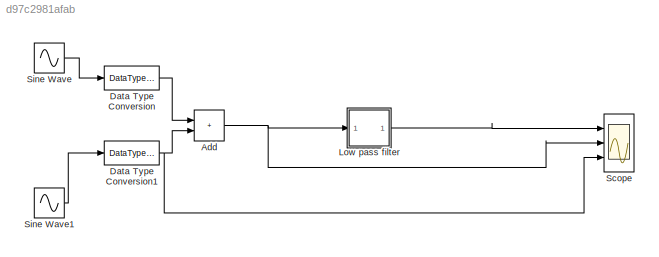
MODEL slx_d97c2981afab
KIND model
CONFIG AbsTol = auto
CONFIG EnableMultiTasking = off
CONFIG FixedStep = 250e-6
CONFIG MaxStep = auto
CONFIG MinStep = auto
CONFIG RelTol = 1e-3
CONFIG SampleTimeConstraint = Unconstrained
CONFIG SolverName = FixedStepDiscrete
CONFIG StartTime = 0.0
CONFIG StopTime = 10.0
BLOCK [Sum] Add
  IconShape = rectangular
  Ports = [2, 1]
BLOCK [DataTypeConversion] Data Type Conversion
  OutDataTypeStr = fixdt(1,16,2^-5,0)
  RndMeth = Floor
  SaturateOnIntegerOverflow = off
BLOCK [DataTypeConversion] Data Type Conversion1
  RndMeth = Floor
  SaturateOnIntegerOverflow = off
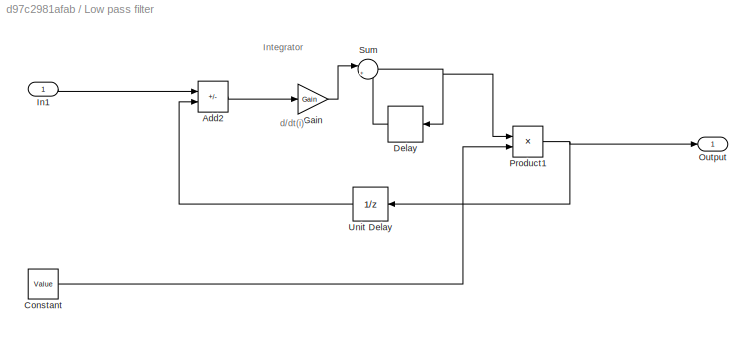
BLOCK [SubSystem] Low pass filter
  AttributesFormatString = Integration constant %<Gain>
  Ports = [1, 1]
  RequestExecContextInheritance = off
BLOCK [Sum] Low pass filter/Add2
  IconShape = rectangular
  Inputs = +-
  Ports = [2, 1]
BLOCK [Constant] Low pass filter/Constant
  Value = Value
BLOCK [Delay] Low pass filter/Delay
  DelayLength = 1
  InitialCondition = 0
  InputPortMap = u0
  NameLocation = top
  Ports = [1, 1]
BLOCK [Gain] Low pass filter/Gain
  Gain = Gain
  OutDataTypeStr = fixdt(1,16,2^-14,0)
  OutMax = +1
  OutMin = -1
  ParamDataTypeStr = fixdt(1,16,2^-15,0)
  SaturateOnIntegerOverflow = on
BLOCK [Inport] Low pass filter/In1
BLOCK [Outport] Low pass filter/Output
BLOCK [Product] Low pass filter/Product1
  OutDataTypeStr = fixdt(1,16,2^-6,0)
  Ports = [2, 1]
BLOCK [Sum] Low pass filter/Sum
  Inputs = |++
  OutDataTypeStr = fixdt(1,16,2^-14,0)
  Ports = [2, 1]
BLOCK [UnitDelay] Low pass filter/Unit Delay
  HasFrameUpgradeWarning = on
  NameLocation = top
  SampleTime = -1
BLOCK [Scope] Scope
  Floating = off
  NumInputPorts = 3
  Ports = [3]
  ScopeSpecificationString = Simulink.scopes.TimeScopeBlockCfg('CurrentConfiguration', extmgr.ConfigurationSet(extmgr.Configuration('Core','General UI',true),extmgr.Configuration('Core','Source UI',true),extmgr.Configuration('Sources','WiredSimulink',true),extmgr.Configuration('Visuals','Time Domain',true,'SerializedDisplays',{struct('MinYLimReal','-29.95312','MaxYLimReal','29.89062','YLabelReal','','MinYLimMag','0.00000','Ma...<+1470ch>
BLOCK [Sin] Sine Wave
  Amplitude = 12
  Frequency = 2000
  Ports = [0, 1]
  SampleTime = 0
BLOCK [Sin] Sine Wave1
  Amplitude = 12
  Frequency = 100
  Ports = [0, 1]
  SampleTime = 0
ANNOTATION Low pass filter: d/dt(i)
ANNOTATION Low pass filter: Integrator
NET Add:1 -> Low pass filter:1, Scope:2
NET Data Type Conversion1:1 -> Add:2, Scope:3
LINE Data Type Conversion:1 -> Add:1
LINE Low pass filter/Add2:1 -> Low pass filter/Gain:1
LINE Low pass filter/Constant:1 -> Low pass filter/Product1:2
LINE Low pass filter/Delay:1 -> Low pass filter/Sum:2
LINE Low pass filter/Gain:1 -> Low pass filter/Sum:1
LINE Low pass filter/In1:1 -> Low pass filter/Add2:1
NET Low pass filter/Product1:1 -> Low pass filter/Output:1, Low pass filter/Unit Delay:1
NET Low pass filter/Sum:1 -> Low pass filter/Delay:1, Low pass filter/Product1:1
LINE Low pass filter/Unit Delay:1 -> Low pass filter/Add2:2
LINE Low pass filter:1 -> Scope:1
LINE Sine Wave1:1 -> Data Type Conversion1:1
LINE Sine Wave:1 -> Data Type Conversion:1
note: NET lines group one-source signal fan-out (src -> all destinations, sorted); 1:1 wires keep LINE
